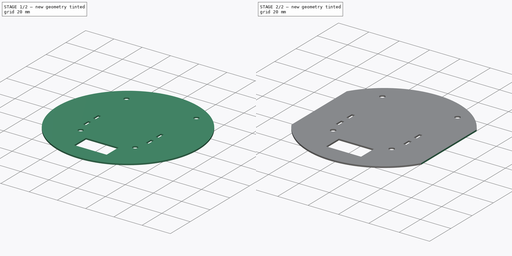
[diagram: build sequence overview — one tinted view per stage of 2, left to right]
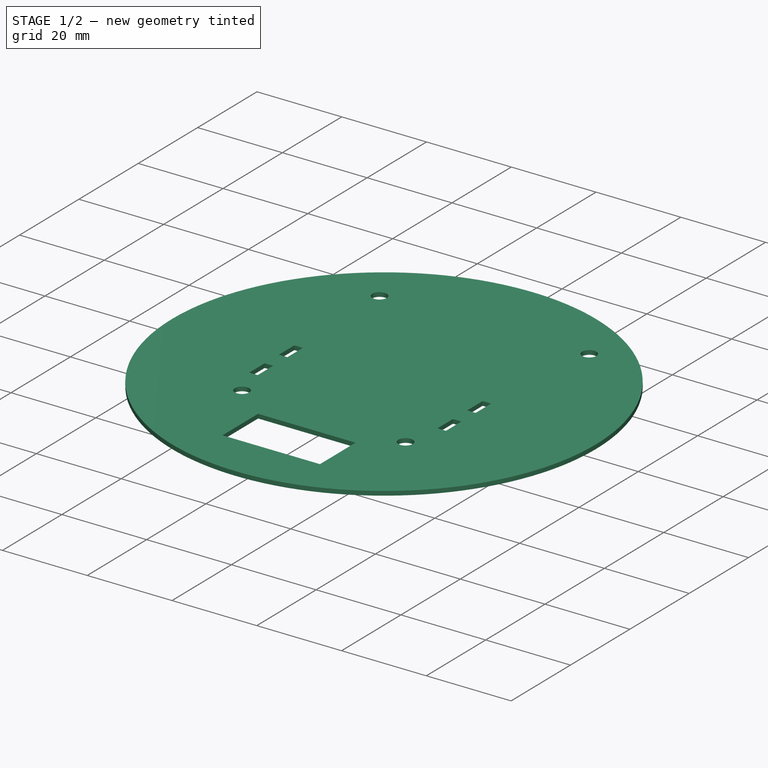
[diagram: stage 1 of 2 — iso view after this stage's code; geometry added in this stage tinted green]
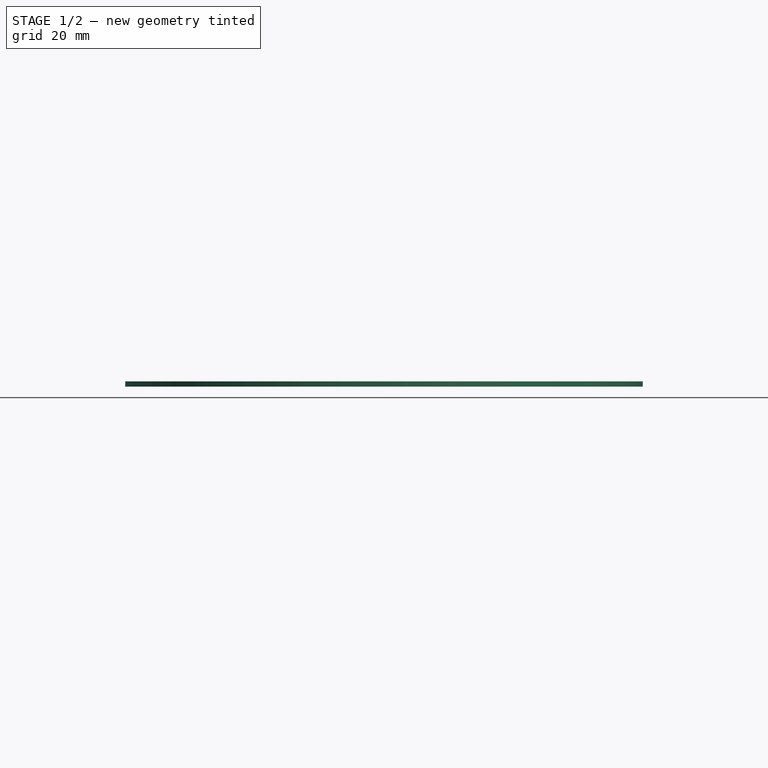
[diagram: stage 1 of 2 — front view after this stage's code; geometry added in this stage tinted green]
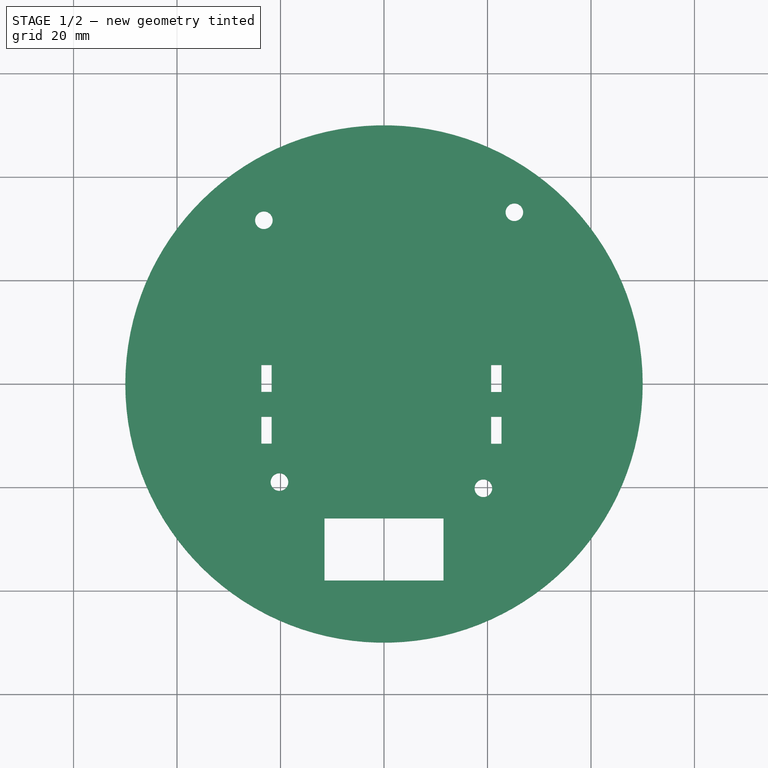
[diagram: stage 1 of 2 — top view after this stage's code; geometry added in this stage tinted green]
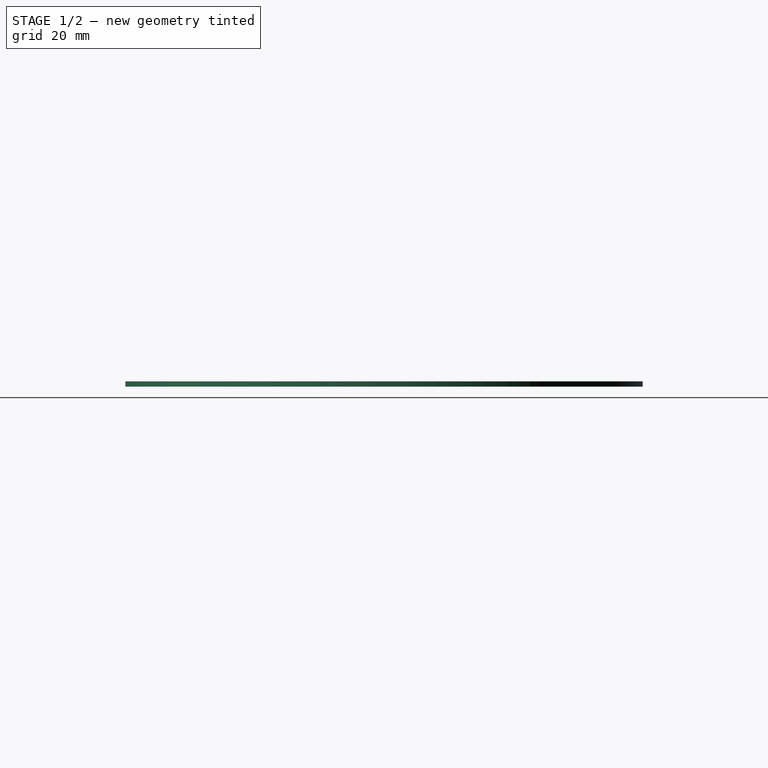
[diagram: stage 1 of 2 — right view after this stage's code; geometry added in this stage tinted green]
FCSTD DOCUMENT  (FreeCAD 0.19R)
Label: etage
License: All rights reserved
LicenseURL: http://en.wikipedia.org/wiki/All_rights_reserved
objects: Sketcher::SketchObject×2, PartDesign::Pad×1, PartDesign::Pocket×1, PartDesign::Body×1
note: 7 computed .brp shape members not serialized (recipe doc carries the construction recipe); baked Part::Feature solids carry a one-line shape summary decoded from their .brp

FEATURE [Sketcher::SketchObject] Sketch
  FullyConstrained = false
  sketch-geometry (44):
    g0: Circle CenterX=0 CenterY=0 CenterZ=0 NormalX=0 NormalY=0 NormalZ=1 AngleXU=0 Radius=50
    g1: LineSegment StartX=-42.7083 StartY=26 StartZ=0 EndX=42.7083 EndY=26 EndZ=0
    g2: LineSegment StartX=42.7083 StartY=26 StartZ=0 EndX=42.7083 EndY=-26 EndZ=0
    g3: LineSegment StartX=42.7083 StartY=-26 StartZ=0 EndX=-42.7083 EndY=-26 EndZ=0
    g4: LineSegment StartX=-42.7083 StartY=-26 StartZ=0 EndX=-42.7083 EndY=26 EndZ=0
    g5: Circle CenterX=-20.2083 CenterY=-18.9643 CenterZ=0 NormalX=0 NormalY=0 NormalZ=1 AngleXU=0 Radius=1.7
    g6: LineSegment StartX=-20.2083 StartY=-18.9643 StartZ=0 EndX=-42.7083 EndY=-18.9643 EndZ=0
    g7: LineSegment StartX=-20.2083 StartY=-18.9643 StartZ=0 EndX=-20.2083 EndY=-45.7343 EndZ=0
    g8: LineSegment StartX=19.2083 StartY=-20.1632 StartZ=0 EndX=42.7083 EndY=-20.1632 EndZ=0
    g9: Circle CenterX=19.2083 CenterY=-20.1632 CenterZ=0 NormalX=0 NormalY=0 NormalZ=1 AngleXU=0 Radius=1.7
    g10: LineSegment StartX=19.2083 StartY=-20.1632 StartZ=0 EndX=19.2083 EndY=-46.1632 EndZ=0
    g11: Circle CenterX=0 CenterY=0 CenterZ=0 NormalX=0 NormalY=0 NormalZ=1 AngleXU=0 Radius=7.5
    g12: Circle CenterX=-23.2149 CenterY=31.641 CenterZ=0 NormalX=0 NormalY=0 NormalZ=1 AngleXU=0 Radius=1.7
    g13: LineSegment StartX=-23.2149 StartY=31.641 StartZ=0 EndX=-23.2149 EndY=44.2839 EndZ=0
    g14: LineSegment StartX=-23.2149 StartY=31.641 StartZ=0 EndX=-38.7149 EndY=31.641 EndZ=0
    g15: Circle CenterX=25.194 CenterY=33.1887 CenterZ=0 NormalX=0 NormalY=0 NormalZ=1 AngleXU=0 Radius=1.7
    g16: LineSegment StartX=25.194 StartY=33.1887 StartZ=0 EndX=25.194 EndY=43.1887 EndZ=0
    g17: LineSegment StartX=25.194 StartY=33.1887 StartZ=0 EndX=37.3967 EndY=33.1887 EndZ=0
    g18: LineSegment StartX=-11.5 StartY=-26 StartZ=0 EndX=11.5 EndY=-26 EndZ=0
    g19: LineSegment StartX=11.5 StartY=-26 StartZ=0 EndX=11.5 EndY=-38 EndZ=0
    g20: LineSegment StartX=11.5 StartY=-38 StartZ=0 EndX=-11.5 EndY=-38 EndZ=0
    g21: LineSegment StartX=-11.5 StartY=-38 StartZ=0 EndX=-11.5 EndY=-26 EndZ=0
    g22: LineSegment StartX=20.7083 StartY=3.65415 StartZ=0 EndX=22.7083 EndY=3.65415 EndZ=0
    g23: LineSegment StartX=22.7083 StartY=3.65415 StartZ=0 EndX=22.7083 EndY=-1.54585 EndZ=0
    g24: LineSegment StartX=22.7083 StartY=-1.54585 StartZ=0 EndX=20.7083 EndY=-1.54585 EndZ=0
    g25: LineSegment StartX=20.7083 StartY=-1.54585 StartZ=0 EndX=20.7083 EndY=3.65415 EndZ=0
    g26: LineSegment StartX=20.7083 StartY=-6.34585 StartZ=0 EndX=22.7083 EndY=-6.34585 EndZ=0
    g27: LineSegment StartX=22.7083 StartY=-6.34585 StartZ=0 EndX=22.7083 EndY=-11.5458 EndZ=0
    g28: LineSegment StartX=22.7083 StartY=-11.5458 StartZ=0 EndX=20.7083 EndY=-11.5458 EndZ=0
    g29: LineSegment StartX=20.7083 StartY=-11.5458 StartZ=0 EndX=20.7083 EndY=-6.34585 EndZ=0
    g30: LineSegment StartX=22.7083 StartY=-6.34585 StartZ=0 EndX=42.7083 EndY=-6.34585 EndZ=0
    g31: LineSegment StartX=22.7083 StartY=-11.5458 StartZ=0 EndX=22.7083 EndY=-44.5458 EndZ=0
    g32: LineSegment StartX=-23.7083 StartY=-6.34177 StartZ=0 EndX=-42.7083 EndY=-6.34177 EndZ=0
    g33: LineSegment StartX=-23.7083 StartY=-11.5418 StartZ=0 EndX=-23.7083 EndY=-44.0218 EndZ=0
    g34: LineSegment StartX=-21.7083 StartY=-11.5418 StartZ=0 EndX=-21.7083 EndY=-6.34177 EndZ=0
    g35: LineSegment StartX=-23.7083 StartY=-6.34177 StartZ=0 EndX=-23.7083 EndY=-11.5418 EndZ=0
    g36: LineSegment StartX=-23.7083 StartY=3.65823 StartZ=0 EndX=-23.7083 EndY=-1.54177 EndZ=0
    g37: LineSegment StartX=-21.7083 StartY=-1.54177 StartZ=0 EndX=-21.7083 EndY=3.65823 EndZ=0
    g38: LineSegment StartX=-21.7083 StartY=-1.54177 StartZ=0 EndX=-21.7083 EndY=-6.34177 EndZ=0
    g39: LineSegment StartX=22.7083 StartY=-1.54585 StartZ=0 EndX=22.7083 EndY=-6.34585 EndZ=0
    g40: LineSegment StartX=-23.7083 StartY=-1.54177 StartZ=0 EndX=-21.7083 EndY=-1.54177 EndZ=0
    g41: LineSegment StartX=-23.7083 StartY=3.65823 StartZ=0 EndX=-21.7083 EndY=3.65823 EndZ=0
    g42: LineSegment StartX=-23.7083 StartY=-6.34177 StartZ=0 EndX=-21.7083 EndY=-6.34177 EndZ=0
    g43: LineSegment StartX=-23.7083 StartY=-11.5418 StartZ=0 EndX=-21.7083 EndY=-11.5418 EndZ=0
  constraints (126):
    c: Coincident(g0,g-1)
    c: Radius(g0) = 50
    c: Coincident(g1,g2)
    c: Coincident(g2,g3)
    c: Coincident(g3,g4)
    c: Coincident(g4,g1)
    c: Horizontal(g1)
    c: Horizontal(g3)
    c: Vertical(g2)
    c: Vertical(g4)
    c: Distance(g4) = 52
    c: PointOnObject(g1,g0)
    c: PointOnObject(g1,g0)
    c: PointOnObject(g3,g0)
    c: Radius(g5) = 1.7
    c: Coincident(g6,g5)
    c: PointOnObject(g6,g4)
    c: Horizontal(g6)
    c: Distance(g6) = 22.5
    c: Coincident(g7,g5)
    c: PointOnObject(g7,g0)
    c: Vertical(g7)
    c: Radius(g9) = 1.7
    c: Coincident(g8,g9)
    c: Horizontal(g8)
    c: Distance(g8) = 23.5
    c: Coincident(g10,g9)
    c: Vertical(g10)
    c: PointOnObject(g10,g0)
    c: PointOnObject(g8,g2)
    c: Coincident(g11,g0)
    c: Diameter(g11) = 15
    c: Coincident(g13,g12)
    c: PointOnObject(g13,g0)
    c: Vertical(g13)
    c: Equal(g12,g5)
    c: Coincident(g14,g12)
    c: PointOnObject(g14,g0)
    c: Horizontal(g14)
    c: Coincident(g16,g15)
    c: Vertical(g16)
    c: Distance(g16) = 10
    c: Coincident(g17,g15)
    c: Horizontal(g17)
    c: PointOnObject(g16,g0)
    c: PointOnObject(g17,g0)
    c: Coincident(g18,g19)
    c: Coincident(g19,g20)
    c: Coincident(g20,g21)
    c: Coincident(g21,g18)
    c: Horizontal(g20)
    c: Vertical(g19)
    c: Vertical(g21)
    c: Distance(g20) = 23
    c: Distance(g19) = 12
    c: Symmetric(g18,g18,g-2)
    c: PointOnObject(g18,g3)
    c: Coincident(g22,g23)
    c: Coincident(g23,g24)
    c: Coincident(g24,g25)
    c: Coincident(g25,g22)
    c: Horizontal(g22)
    c: Horizontal(g24)
    c: Vertical(g25)
    c: Coincident(g26,g27)
    c: Coincident(g27,g28)
    c: Coincident(g28,g29)
    c: Coincident(g29,g26)
    c: Horizontal(g26)
    c: Horizontal(g28)
    c: Vertical(g29)
    c: Distance(g27) = 5.2
    c: Distance(g28) = 2
    c: Equal(g23,g27)
    c: Equal(g22,g26)
    c: Vertical(g27)
    c: Vertical(g23)
    c: Vertical(g26,g23)
    c: Distance(g23,g26) = 4.8
    c: Coincident(g30,g26)
    c: Horizontal(g30)
    c: Distance(g30) = 20
    c: PointOnObject(g30,g2)
    c: Coincident(g31,g27)
    c: PointOnObject(g31,g0)
    c: Vertical(g31)
    c: Distance(g31) = 33
    c: Vertical(g37)
    c: Vertical(g34)
    c: Equal(g36,g35)
    c: Vertical(g35)
    c: Vertical(g36)
    c: Horizontal(g32)
    c: Distance(g32) = 19
    c: Coincident(g33,g35)
    c: Vertical(g33)
    c: PointOnObject(g32,g4)
    c: PointOnObject(g33,g0)
    c: Vertical(g36,g35)
    c: Distance(g33) = 32.48
    c: Equal(g12,g15)
    c: Coincident(g38,g37)
    c: Coincident(g38,g34)
    c: Coincident(g39,g23)
    c: Coincident(g39,g26)
    c: Equal(g39,g38)
    c: Equal(g34,g27)
    c: Coincident(g40,g36)
    c: Coincident(g40,g37)
    c: Horizontal(g40)
    c: Coincident(g41,g36)
    c: Coincident(g41,g37)
    c: Horizontal(g41)
    c: Coincident(g42,g35)
    c: Coincident(g42,g34)
    c: Horizontal(g42)
    c: Coincident(g43,g35)
    c: Coincident(g43,g34)
    c: Horizontal(g43)
    c: Equal(g43,g40)
    c: Equal(g40,g28)
    c: Coincident(g35,g32)
    c: Distance(g13) = 12.6429
    c: Distance(g14) = 15.5
    c: Distance(g10) = 26
    c: Distance(g7) = 26.77
FEATURE [PartDesign::Pad] Pad
  Direction = (1,1,1)
  Length = 1
  Length2 = 100
  Profile = -> Sketch
  Type = 0
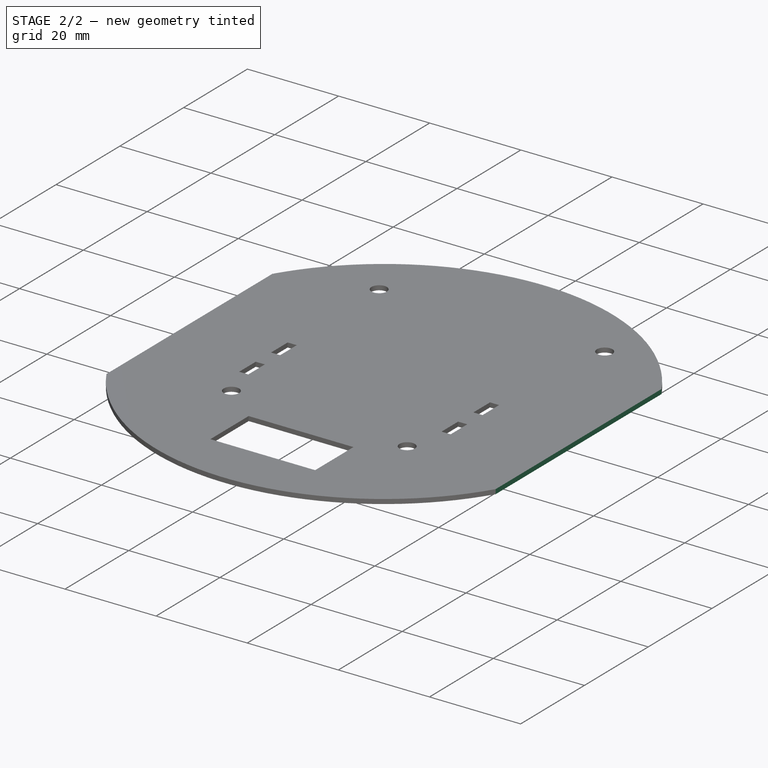
[diagram: stage 2 of 2 — iso view after this stage's code; geometry added in this stage tinted green]
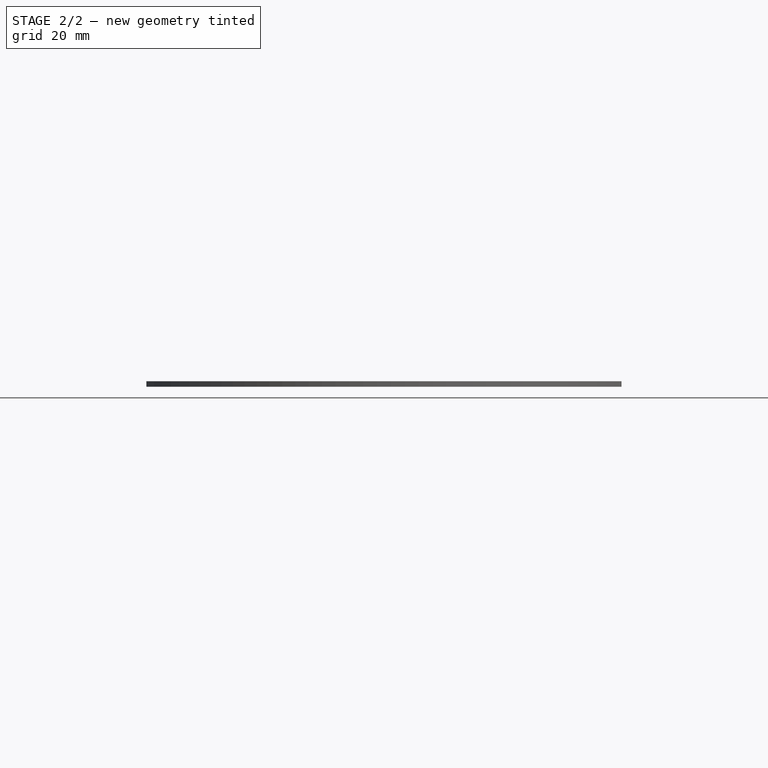
[diagram: stage 2 of 2 — front view after this stage's code; geometry added in this stage tinted green]
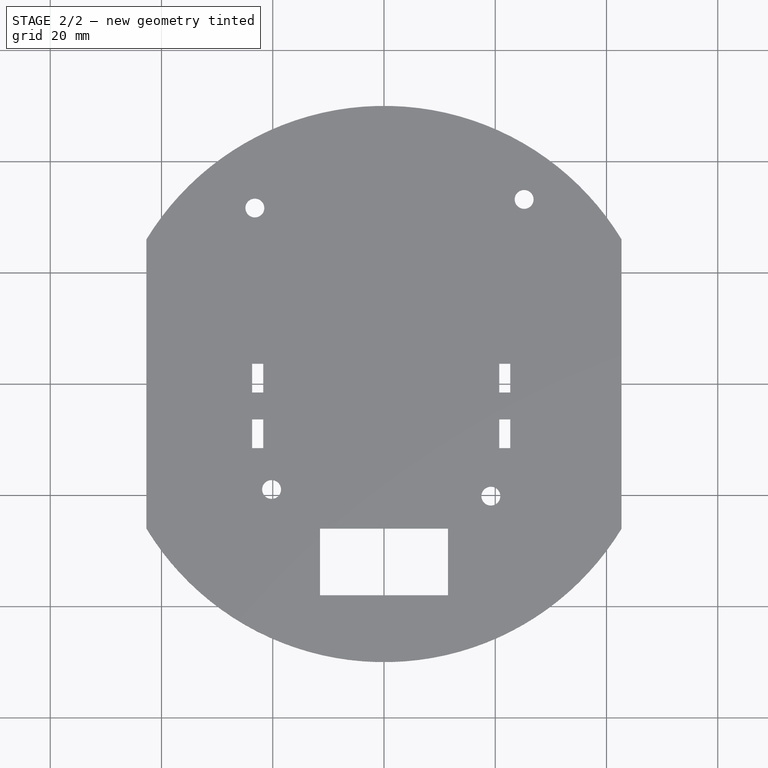
[diagram: stage 2 of 2 — top view after this stage's code; geometry added in this stage tinted green]
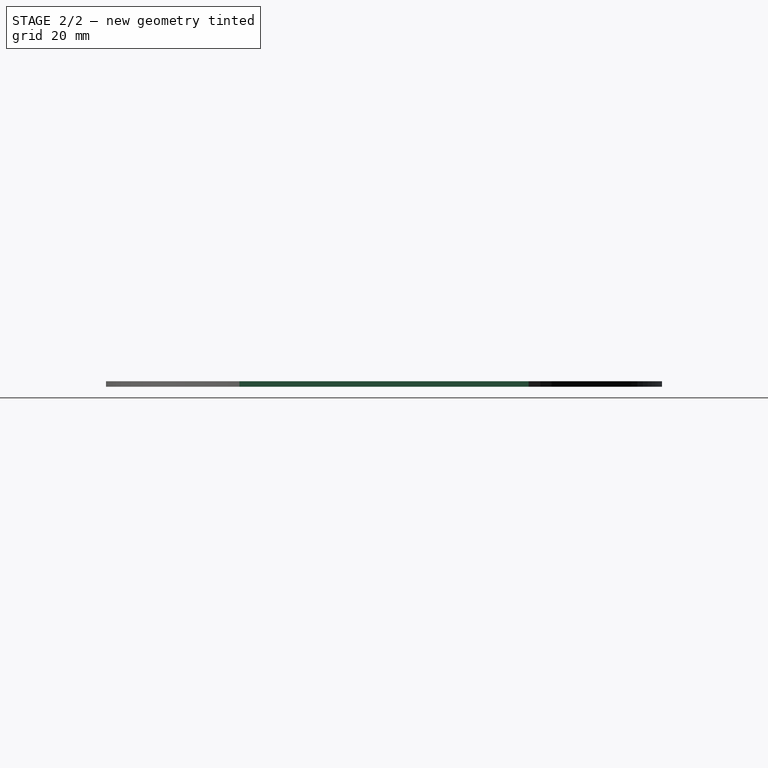
[diagram: stage 2 of 2 — right view after this stage's code; geometry added in this stage tinted green]
FEATURE [Sketcher::SketchObject] Sketch001
  ExternalGeometry = -> [Sketch]
  FullyConstrained = true
  MapMode = 5
  Placement = pos=(0,0,1) rot=(0,0,1;0rad)
  Support = -> [Pad]
  sketch-geometry (6):
    g0: LineSegment StartX=-42.7083 StartY=26 StartZ=0 EndX=-42.7083 EndY=-26 EndZ=0
    g1: LineSegment StartX=42.7083 StartY=26 StartZ=0 EndX=42.7083 EndY=-26 EndZ=0
    g2: GeomPoint X=42.7083 Y=6.929e-13 Z=0
    g3: GeomPoint X=-42.7083 Y=-1.6e-15 Z=0
    g4: ArcOfCircle CenterX=42.7083 CenterY=6.929e-13 CenterZ=0 NormalX=0 NormalY=0 NormalZ=1 AngleXU=0 Radius=26 StartAngle=4.71239 EndAngle=7.85398
    g5: ArcOfCircle CenterX=-42.7083 CenterY=-1.6e-15 CenterZ=0 NormalX=0 NormalY=0 NormalZ=1 AngleXU=0 Radius=26 StartAngle=1.5708 EndAngle=4.71239
  constraints (12):
    c: Coincident(g0,g-3)
    c: Coincident(g0,g-3)
    c: Coincident(g1,g-4)
    c: Coincident(g1,g-4)
    c: PointOnObject(g2,g1)
    c: PointOnObject(g3,g0)
    c: Coincident(g4,g2)
    c: Coincident(g4,g1)
    c: Coincident(g4,g1)
    c: Coincident(g5,g3)
    c: Coincident(g5,g0)
    c: Coincident(g5,g0)
FEATURE [PartDesign::Pocket] Pocket
  BaseFeature = -> Pad
  Length = 5
  Length2 = 100
  Profile = -> Sketch001
  Type = 1
FEATURE [PartDesign::Body] Body
  Group = -> [Sketch,Pad,Sketch001,Pocket]
  Origin = -> Origin
  Tip = -> Pocket
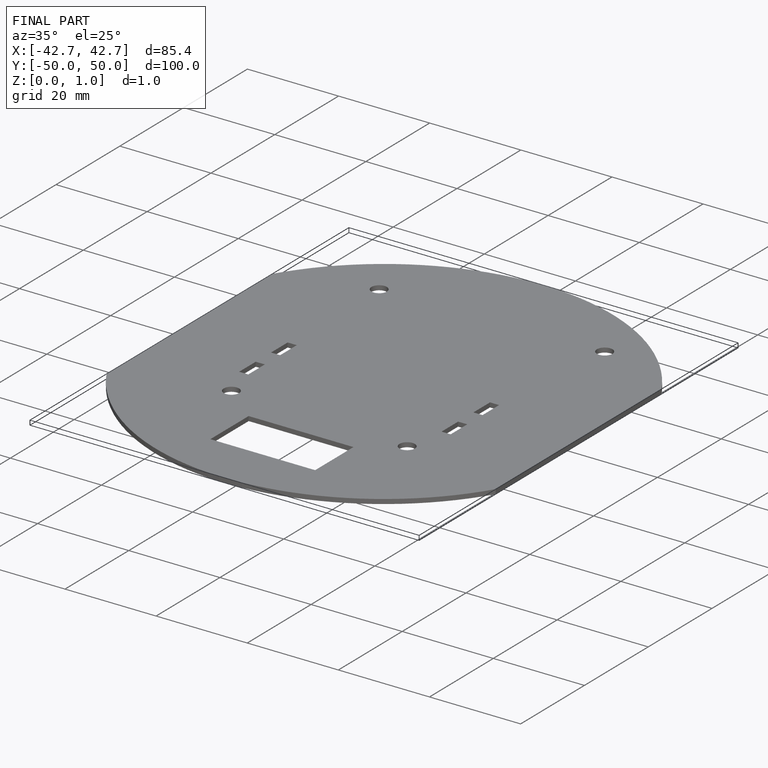
[diagram: finished part — iso view with bounding-box wireframe]
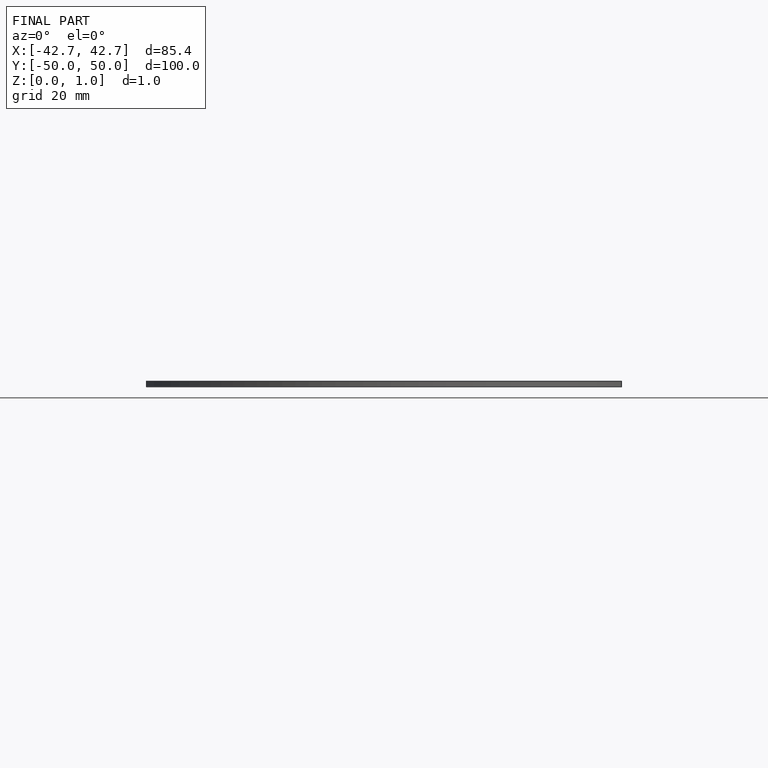
[diagram: finished part — front view with bounding-box wireframe]
